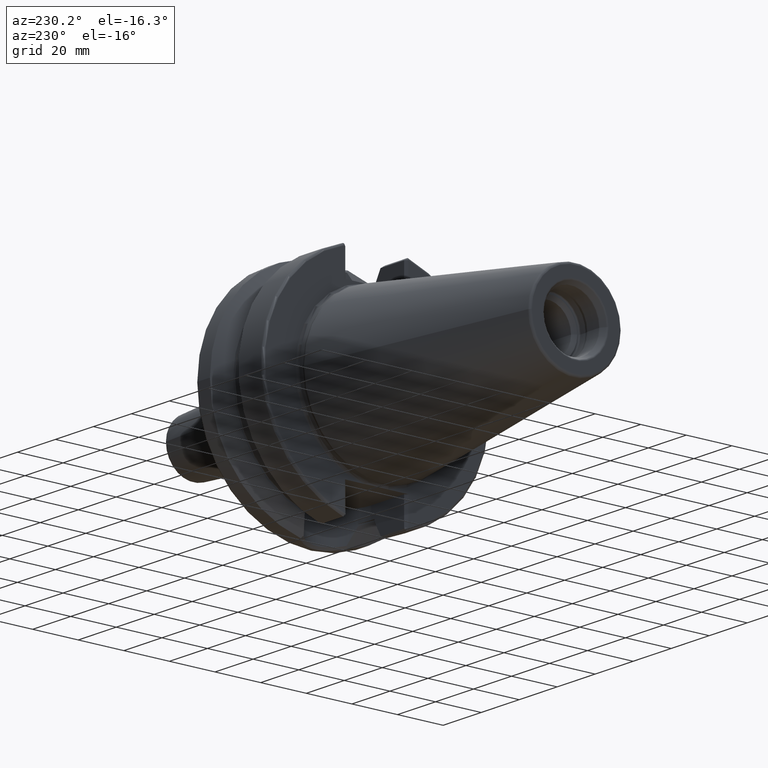
[diagram: clean part render]
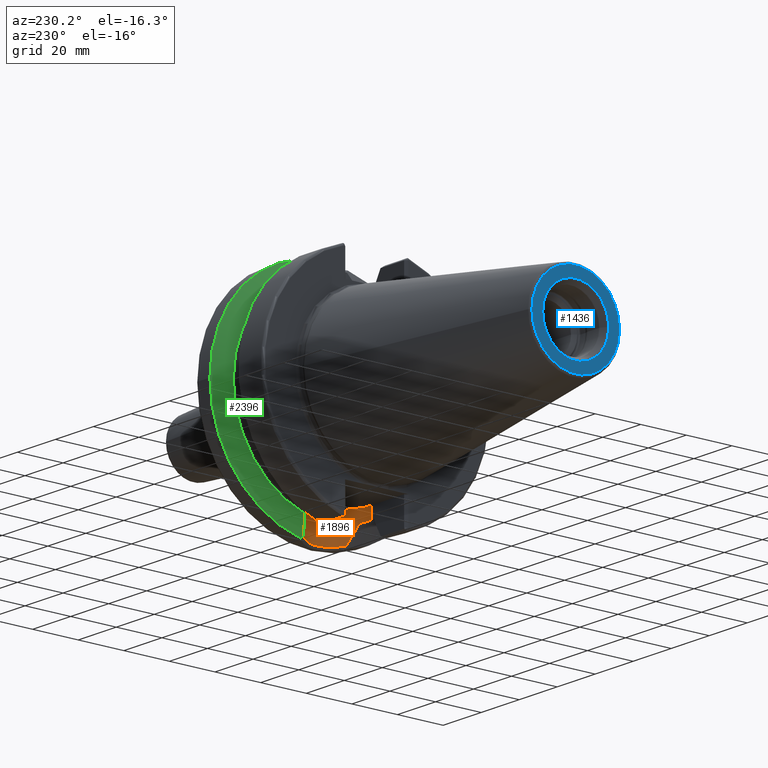
[diagram: same view with three faces highlighted in distinct colors, each labeled with its STEP entity id]
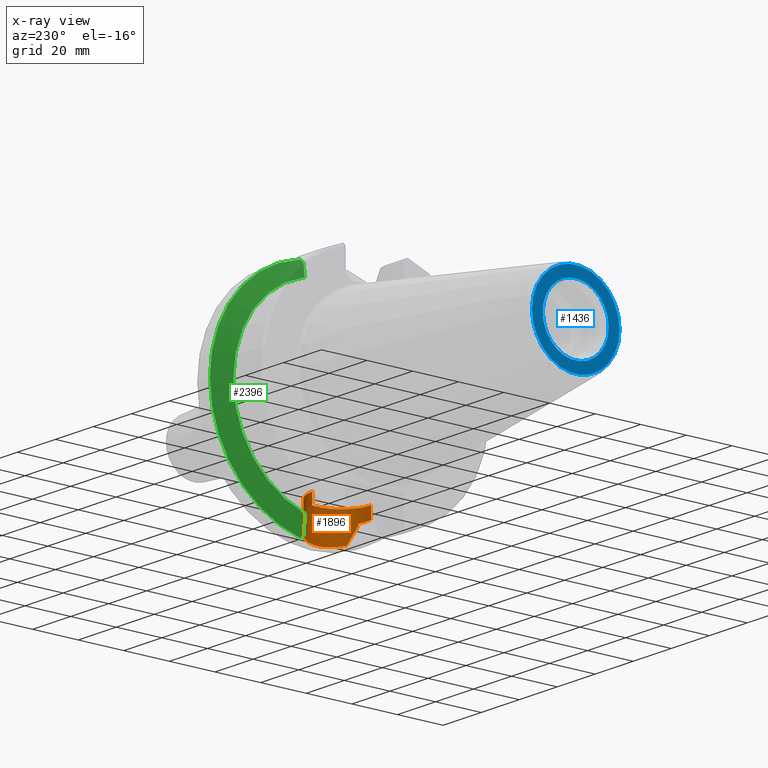
[diagram: x-ray of the same camera — body ghosted, the three highlighted faces saturated]
A machine part, auxiliary view with three faces highlighted in distinct colors.
The next image is the same camera in x-ray (body ghosted, the three faces saturated) — at least one of them is partly hidden behind the body in this view.
Their STEP definitions:

[orange] entity #1896 — the highlighted cylindrical surface (partial cylindrical patch) has radius 12.9025 mm, axis along (0, 0, 1).
#182=DIRECTION('',(0.E0,0.E0,-1.E0));
#183=VECTOR('',#182,5.162930007E0);
#184=CARTESIAN_POINT('',(2.13475E1,1.29025E1,-3.52E1));
#185=LINE('',#184,#183);
#354=CARTESIAN_POINT('',(2.13475E1,1.29025E1,-4.036293000700E1));
#355=CARTESIAN_POINT('',(2.193211835169E1,1.29025E1,-4.036293000700E1));
#356=CARTESIAN_POINT('',(2.309259987866E1,1.282394305612E1,-4.038817378856E1));
#357=CARTESIAN_POINT('',(2.482251458198E1,1.246756636177E1,-4.050035379602E1));
#358=CARTESIAN_POINT('',(2.593767013310E1,1.207328392825E1,-4.061943244291E1));
#359=CARTESIAN_POINT('',(2.64875E1,1.183447955129E1,-4.068888937720E1));
#368=CARTESIAN_POINT('',(2.64875E1,-1.183447955129E1,-4.068888937720E1));
#369=CARTESIAN_POINT('',(2.593767013313E1,-1.207328392824E1,-4.061943244291E1));
#370=CARTESIAN_POINT('',(2.482251458205E1,-1.246756636174E1,-4.050035379603E1));
#371=CARTESIAN_POINT('',(2.309259987910E1,-1.282394305606E1,-4.038817378858E1));
#372=CARTESIAN_POINT('',(2.193211835188E1,-1.29025E1,-4.036293000700E1));
#373=CARTESIAN_POINT('',(2.13475E1,-1.29025E1,-4.036293000700E1));
#387=DIRECTION('',(2.297871418294E-14,0.E0,1.E0));
#388=VECTOR('',#387,4.638266941984E-1);
#389=CARTESIAN_POINT('',(2.67375E1,-1.172273032403E1,-4.144514217760E1));
#390=LINE('',#389,#388);
#391=CARTESIAN_POINT('',(3.016210431090E1,-9.422168385896E0,-4.808834737145E1));
#392=CARTESIAN_POINT('',(2.984184465633E1,-9.721776927818E0,-4.746439031418E1));
#393=CARTESIAN_POINT('',(2.916110296190E1,-1.029742776940E1,-4.613939859477E1));
#394=CARTESIAN_POINT('',(2.801848253867E1,-1.107377940524E1,-4.392131510326E1));
#395=CARTESIAN_POINT('',(2.717774587881E1,-1.152030945269E1,-4.229484073698E1));
#396=CARTESIAN_POINT('',(2.67375E1,-1.172273032403E1,-4.144514217760E1));
#398=CARTESIAN_POINT('',(3.016210431090E1,-9.422168385896E0,-4.808834737145E1));
#399=CARTESIAN_POINT('',(3.038830254385E1,-9.210558729678E0,-4.812867332843E1));
#400=CARTESIAN_POINT('',(3.103434169493E1,-8.560889379491E0,-4.824821252851E1));
#401=CARTESIAN_POINT('',(3.197970905132E1,-7.382445453295E0,-4.844242280592E1));
#402=CARTESIAN_POINT('',(3.289145171727E1,-5.852654825445E0,-4.864857494510E1));
#403=CARTESIAN_POINT('',(3.357771384758E1,-4.232712259927E0,-4.881504266262E1));
#404=CARTESIAN_POINT('',(3.403491650909E1,-2.550947084760E0,-4.893129473496E1));
#405=CARTESIAN_POINT('',(3.426160790023E1,-8.338904639241E-1,
-4.899052850444E1));
#406=CARTESIAN_POINT('',(3.425755148343E1,8.947935434790E-1,-4.898945929220E1));
#407=CARTESIAN_POINT('',(3.402263555299E1,2.611429124511E0,-4.892811575875E1));
#408=CARTESIAN_POINT('',(3.355723766629E1,4.291494858894E0,-4.880993653671E1));
#409=CARTESIAN_POINT('',(3.286290406160E1,5.908692243282E0,-4.864185941849E1));
#410=CARTESIAN_POINT('',(3.194332576898E1,7.434643787718E0,-4.843455074383E1));
#411=CARTESIAN_POINT('',(3.100512167181E1,8.592346283708E0,-4.824257317048E1));
#412=CARTESIAN_POINT('',(3.037263944382E1,9.225225040673E0,-4.812587812569E1));
#413=CARTESIAN_POINT('',(3.016210355788E1,9.422169090361E0,-4.808834590435E1));
#415=CARTESIAN_POINT('',(2.67375E1,1.172273032403E1,-4.144514217760E1));
#416=CARTESIAN_POINT('',(2.717755273188E1,1.152039825981E1,-4.229446795287E1));
#417=CARTESIAN_POINT('',(2.801804260532E1,1.107404406164E1,-4.392046244152E1));
#418=CARTESIAN_POINT('',(2.916093120674E1,1.029757215552E1,-4.613906421021E1));
#419=CARTESIAN_POINT('',(2.984177307163E1,9.721843848552E0,-4.746425084782E1));
#420=CARTESIAN_POINT('',(3.016210355788E1,9.422169090361E0,-4.808834590435E1));
#422=DIRECTION('',(0.E0,1.148935709147E-14,1.E0));
#423=VECTOR('',#422,4.638266941984E-1);
#424=CARTESIAN_POINT('',(2.67375E1,1.172273032403E1,-4.144514217760E1));
#425=LINE('',#424,#423);
#426=CARTESIAN_POINT('',(2.64875E1,1.183447955129E1,-4.068888937720E1));
#427=CARTESIAN_POINT('',(2.651408131936E1,1.182293464297E1,-4.069224724672E1));
#428=CARTESIAN_POINT('',(2.656490253593E1,1.180065791496E1,-4.070695762482E1));
#429=CARTESIAN_POINT('',(2.663891469758E1,1.176763685688E1,-4.075541966358E1));
#430=CARTESIAN_POINT('',(2.669626231199E1,1.174163763665E1,-4.082489375053E1));
#431=CARTESIAN_POINT('',(2.672998645392E1,1.172618901674E1,-4.090260058967E1));
#432=CARTESIAN_POINT('',(2.67375E1,1.172273032403E1,-4.095473554554E1));
#433=CARTESIAN_POINT('',(2.67375E1,1.172273032403E1,-4.098131548340E1));
#435=DIRECTION('',(0.E0,0.E0,-1.E0));
#436=VECTOR('',#435,5.162930007E0);
#437=CARTESIAN_POINT('',(2.13475E1,-1.29025E1,-3.52E1));
#438=LINE('',#437,#436);
#439=CARTESIAN_POINT('',(2.67375E1,-1.172273032403E1,-4.098131548340E1));
#440=CARTESIAN_POINT('',(2.67375E1,-1.172273032403E1,-4.095473554554E1));
#441=CARTESIAN_POINT('',(2.672998645392E1,-1.172618901674E1,-4.090260058967E1));
#442=CARTESIAN_POINT('',(2.669626231199E1,-1.174163763665E1,-4.082489375053E1));
#443=CARTESIAN_POINT('',(2.663891469758E1,-1.176763685688E1,-4.075541966358E1));
#444=CARTESIAN_POINT('',(2.656490253593E1,-1.180065791496E1,-4.070695762482E1));
#445=CARTESIAN_POINT('',(2.651408131936E1,-1.182293464297E1,-4.069224724672E1));
#446=CARTESIAN_POINT('',(2.64875E1,-1.183447955129E1,-4.068888937720E1));
#753=CARTESIAN_POINT('',(2.13475E1,0.E0,-3.52E1));
#754=DIRECTION('',(0.E0,0.E0,1.E0));
#755=DIRECTION('',(0.E0,-1.E0,0.E0));
#756=AXIS2_PLACEMENT_3D('',#753,#754,#755);
#1193=CARTESIAN_POINT('',(2.67375E1,-1.172273032403E1,-4.098131548340E1));
#1195=VERTEX_POINT('',#1193);
#1196=CARTESIAN_POINT('',(2.64875E1,-1.183447955129E1,-4.068888937720E1));
#1198=VERTEX_POINT('',#1196);
#1201=CARTESIAN_POINT('',(2.64875E1,1.183447955129E1,-4.068888937720E1));
#1203=VERTEX_POINT('',#1201);
#1204=CARTESIAN_POINT('',(2.67375E1,1.172273032403E1,-4.098131548340E1));
#1206=VERTEX_POINT('',#1204);
#1209=CARTESIAN_POINT('',(2.67375E1,1.172273032403E1,-4.144514217760E1));
#1211=VERTEX_POINT('',#1209);
#1212=CARTESIAN_POINT('',(2.67375E1,-1.172273032403E1,-4.144514217760E1));
#1214=VERTEX_POINT('',#1212);
#1314=CARTESIAN_POINT('',(2.13475E1,-1.29025E1,-3.52E1));
#1315=CARTESIAN_POINT('',(2.13475E1,1.29025E1,-3.52E1));
#1316=VERTEX_POINT('',#1314);
#1317=VERTEX_POINT('',#1315);
#1330=CARTESIAN_POINT('',(2.13475E1,1.29025E1,-4.036293000700E1));
#1331=VERTEX_POINT('',#1330);
#1333=CARTESIAN_POINT('',(2.13475E1,-1.29025E1,-4.036293000700E1));
#1334=VERTEX_POINT('',#1333);
#1336=VERTEX_POINT('',#391);
#1337=VERTEX_POINT('',#420);
#1869=CARTESIAN_POINT('',(2.13475E1,0.E0,-3.52E1));
#1870=DIRECTION('',(0.E0,0.E0,1.E0));
#1871=DIRECTION('',(1.E0,0.E0,0.E0));
#1872=AXIS2_PLACEMENT_3D('',#1869,#1870,#1871);
#1873=CYLINDRICAL_SURFACE('',#1872,1.29025E1);
#1875=ORIENTED_EDGE('',*,*,#1874,.F.);
#1877=ORIENTED_EDGE('',*,*,#1876,.F.);
#1879=ORIENTED_EDGE('',*,*,#1878,.T.);
#1881=ORIENTED_EDGE('',*,*,#1880,.F.);
#1883=ORIENTED_EDGE('',*,*,#1882,.T.);
#1885=ORIENTED_EDGE('',*,*,#1884,.F.);
#1886=ORIENTED_EDGE('',*,*,#1840,.F.);
#1887=ORIENTED_EDGE('',*,*,#1641,.F.);
#1889=ORIENTED_EDGE('',*,*,#1888,.F.);
#1890=ORIENTED_EDGE('',*,*,#1792,.T.);
#1891=ORIENTED_EDGE('',*,*,#1856,.F.);
#1893=ORIENTED_EDGE('',*,*,#1892,.F.);
#1894=EDGE_LOOP('',(#1875,#1877,#1879,#1881,#1883,#1885,#1886,#1887,#1889,#1890,
#1891,#1893));
#1895=FACE_OUTER_BOUND('',#1894,.F.);
#1896=ADVANCED_FACE('',(#1895),#1873,.F.);
#360=B_SPLINE_CURVE_WITH_KNOTS('',3,(#354,#355,#356,#357,#358,#359),
.UNSPECIFIED.,.F.,.F.,(4,1,1,4),(0.E0,3.333333333333E-1,6.666666666667E-1,1.E0),
.UNSPECIFIED.);
#374=B_SPLINE_CURVE_WITH_KNOTS('',3,(#368,#369,#370,#371,#372,#373),
.UNSPECIFIED.,.F.,.F.,(4,1,1,4),(0.E0,3.333333333333E-1,6.666666666667E-1,1.E0),
.UNSPECIFIED.);
#397=B_SPLINE_CURVE_WITH_KNOTS('',3,(#391,#392,#393,#394,#395,#396),
.UNSPECIFIED.,.F.,.F.,(4,1,1,4),(0.E0,3.333333333333E-1,6.666666666667E-1,1.E0),
.UNSPECIFIED.);
#414=B_SPLINE_CURVE_WITH_KNOTS('',3,(#398,#399,#400,#401,#402,#403,#404,#405,
#406,#407,#408,#409,#410,#411,#412,#413),.UNSPECIFIED.,.F.,.F.,(4,1,1,1,1,1,1,1,
1,1,1,1,1,4),(0.E0,4.259851317235E-2,1.260313520961E-1,2.094641910198E-1,
2.928970299435E-1,3.763298688672E-1,4.597627077909E-1,5.431955467147E-1,
6.266283856384E-1,7.100612245621E-1,7.934940634858E-1,8.769269024095E-1,
9.603597413332E-1,1.E0),.UNSPECIFIED.);
#421=B_SPLINE_CURVE_WITH_KNOTS('',3,(#415,#416,#417,#418,#419,#420),
.UNSPECIFIED.,.F.,.F.,(4,1,1,4),(0.E0,3.333333333333E-1,6.666666666667E-1,1.E0),
.UNSPECIFIED.);
#434=B_SPLINE_CURVE_WITH_KNOTS('',3,(#426,#427,#428,#429,#430,#431,#432,#433),
.UNSPECIFIED.,.F.,.F.,(4,1,1,1,1,4),(0.E0,2.E-1,4.E-1,6.E-1,8.E-1,1.E0),
.UNSPECIFIED.);
#447=B_SPLINE_CURVE_WITH_KNOTS('',3,(#439,#440,#441,#442,#443,#444,#445,#446),
.UNSPECIFIED.,.F.,.F.,(4,1,1,1,1,4),(0.E0,2.E-1,4.E-1,6.E-1,8.E-1,1.E0),
.UNSPECIFIED.);
#757=CIRCLE('',#756,1.29025E1);
#1641=EDGE_CURVE('',#1317,#1331,#185,.T.);
#1792=EDGE_CURVE('',#1316,#1334,#438,.T.);
#1840=EDGE_CURVE('',#1331,#1203,#360,.T.);
#1856=EDGE_CURVE('',#1198,#1334,#374,.T.);
#1874=EDGE_CURVE('',#1214,#1195,#390,.T.);
#1876=EDGE_CURVE('',#1336,#1214,#397,.T.);
#1878=EDGE_CURVE('',#1336,#1337,#414,.T.);
#1880=EDGE_CURVE('',#1211,#1337,#421,.T.);
#1882=EDGE_CURVE('',#1211,#1206,#425,.T.);
#1884=EDGE_CURVE('',#1203,#1206,#434,.T.);
#1888=EDGE_CURVE('',#1316,#1317,#757,.T.);
#1892=EDGE_CURVE('',#1195,#1198,#447,.T.);

[blue] entity #1436 — the highlighted planar face has unit normal (1, 0, 0).
#2=CARTESIAN_POINT('',(-1.018E2,0.E0,0.E0));
#3=DIRECTION('',(-1.E0,0.E0,0.E0));
#4=DIRECTION('',(0.E0,1.E0,0.E0));
#5=AXIS2_PLACEMENT_3D('',#2,#3,#4);
#7=CARTESIAN_POINT('',(-1.018E2,0.E0,0.E0));
#8=DIRECTION('',(1.E0,0.E0,0.E0));
#9=DIRECTION('',(0.E0,1.E0,0.E0));
#10=AXIS2_PLACEMENT_3D('',#7,#8,#9);
#12=CARTESIAN_POINT('',(-1.018E2,0.E0,0.E0));
#13=DIRECTION('',(1.E0,0.E0,0.E0));
#14=DIRECTION('',(0.E0,1.E0,0.E0));
#15=AXIS2_PLACEMENT_3D('',#12,#13,#14);
#17=CARTESIAN_POINT('',(-1.018E2,0.E0,0.E0));
#18=DIRECTION('',(1.E0,0.E0,0.E0));
#19=DIRECTION('',(0.E0,-1.E0,0.E0));
#20=AXIS2_PLACEMENT_3D('',#17,#18,#19);
#1169=CARTESIAN_POINT('',(-1.018E2,1.921319540766E1,0.E0));
#1171=VERTEX_POINT('',#1169);
#1173=CARTESIAN_POINT('',(-1.018E2,-1.921319540766E1,0.E0));
#1175=VERTEX_POINT('',#1173);
#1298=CARTESIAN_POINT('',(-1.018E2,1.446188021535E1,0.E0));
#1299=CARTESIAN_POINT('',(-1.018E2,-1.446188021535E1,0.E0));
#1300=VERTEX_POINT('',#1298);
#1301=VERTEX_POINT('',#1299);
#1419=CARTESIAN_POINT('',(-1.018E2,0.E0,0.E0));
#1420=DIRECTION('',(1.E0,0.E0,0.E0));
#1421=DIRECTION('',(0.E0,-1.E0,0.E0));
#1422=AXIS2_PLACEMENT_3D('',#1419,#1420,#1421);
#1423=PLANE('',#1422);
#1425=ORIENTED_EDGE('',*,*,#1424,.F.);
#1427=ORIENTED_EDGE('',*,*,#1426,.T.);
#1428=EDGE_LOOP('',(#1425,#1427));
#1429=FACE_OUTER_BOUND('',#1428,.F.);
#1431=ORIENTED_EDGE('',*,*,#1430,.F.);
#1433=ORIENTED_EDGE('',*,*,#1432,.F.);
#1434=EDGE_LOOP('',(#1431,#1433));
#1435=FACE_BOUND('',#1434,.F.);
#1436=ADVANCED_FACE('',(#1429,#1435),#1423,.F.);
#6=CIRCLE('',#5,1.921319540766E1);
#11=CIRCLE('',#10,1.921319540766E1);
#16=CIRCLE('',#15,1.446188021535E1);
#21=CIRCLE('',#20,1.446188021535E1);
#1424=EDGE_CURVE('',#1171,#1175,#6,.T.);
#1426=EDGE_CURVE('',#1171,#1175,#11,.T.);
#1430=EDGE_CURVE('',#1300,#1301,#16,.T.);
#1432=EDGE_CURVE('',#1301,#1300,#21,.T.);

[green] entity #2396 — the highlighted conical surface has half-angle 60 deg.
#263=CARTESIAN_POINT('',(3.073066823617E1,0.E0,0.E0));
#264=DIRECTION('',(1.E0,0.E0,0.E0));
#265=DIRECTION('',(0.E0,2.049238320147E-1,-9.787779232657E-1));
#266=AXIS2_PLACEMENT_3D('',#263,#264,#265);
#415=CARTESIAN_POINT('',(2.67375E1,1.172273032403E1,-4.144514217760E1));
#416=CARTESIAN_POINT('',(2.717755273188E1,1.152039825981E1,-4.229446795287E1));
#417=CARTESIAN_POINT('',(2.801804260532E1,1.107404406164E1,-4.392046244152E1));
#418=CARTESIAN_POINT('',(2.916093120674E1,1.029757215552E1,-4.613906421021E1));
#419=CARTESIAN_POINT('',(2.984177307163E1,9.721843848552E0,-4.746425084782E1));
#420=CARTESIAN_POINT('',(3.016210355788E1,9.422169090361E0,-4.808834590435E1));
#485=CARTESIAN_POINT('',(3.006745596523E1,9.509830398822E0,4.790396451831E1));
#486=CARTESIAN_POINT('',(2.975376574683E1,9.797465906135E0,4.729293338983E1));
#487=CARTESIAN_POINT('',(2.908879078217E1,1.035010846105E1,4.599889189585E1));
#488=CARTESIAN_POINT('',(2.797778721927E1,1.109635283633E1,4.384252820130E1));
#489=CARTESIAN_POINT('',(2.716331106798E1,1.152694644153E1,4.226698076473E1));
#490=CARTESIAN_POINT('',(2.67375E1,1.172273032403E1,4.144514217760E1));
#758=CARTESIAN_POINT('',(2.67375E1,0.E0,0.E0));
#759=DIRECTION('',(-1.E0,0.E0,0.E0));
#760=DIRECTION('',(0.E0,2.721714149834E-1,9.622487832499E-1));
#761=AXIS2_PLACEMENT_3D('',#758,#759,#760);
#775=CARTESIAN_POINT('',(3.016210355788E1,9.422169090361E0,-4.808834590435E1));
#776=CARTESIAN_POINT('',(3.022394586618E1,9.512142137117E0,-4.817986780383E1));
#777=CARTESIAN_POINT('',(3.034851502566E1,9.692953240337E0,-4.836399151813E1));
#778=CARTESIAN_POINT('',(3.053803725886E1,9.966778365933E0,-4.864343348084E1));
#779=CARTESIAN_POINT('',(3.066616050581E1,1.015105667945E1,-4.883189001679E1));
#780=CARTESIAN_POINT('',(3.073066823617E1,1.024363005283E1,-4.892666143925E1));
#782=CARTESIAN_POINT('',(3.073066823617E1,0.E0,0.E0));
#783=DIRECTION('',(1.E0,0.E0,0.E0));
#784=DIRECTION('',(0.E0,1.E0,0.E0));
#785=AXIS2_PLACEMENT_3D('',#782,#783,#784);
#948=CARTESIAN_POINT('',(3.073066823617E1,1.046765017837E1,4.887922315251E1));
#949=CARTESIAN_POINT('',(3.065516473864E1,1.035946447073E1,4.876865040800E1));
#950=CARTESIAN_POINT('',(3.050537106240E1,1.014427039488E1,4.854898287946E1));
#951=CARTESIAN_POINT('',(3.028429900742E1,9.824990065200E0,4.822389090934E1));
#952=CARTESIAN_POINT('',(3.013933640756E1,9.614493300520E0,4.801011711517E1));
#953=CARTESIAN_POINT('',(3.006745596523E1,9.509830398822E0,4.790396451831E1));
#1208=CARTESIAN_POINT('',(2.67375E1,1.172273032403E1,4.144514217760E1));
#1209=CARTESIAN_POINT('',(2.67375E1,1.172273032403E1,-4.144514217760E1));
#1210=VERTEX_POINT('',#1208);
#1211=VERTEX_POINT('',#1209);
#1224=CARTESIAN_POINT('',(3.073066823617E1,4.99875E1,0.E0));
#1225=CARTESIAN_POINT('',(3.073066823617E1,1.046765017837E1,4.887922315251E1));
#1226=VERTEX_POINT('',#1224);
#1227=VERTEX_POINT('',#1225);
#1238=CARTESIAN_POINT('',(3.073066823617E1,1.024363005283E1,-4.892666143925E1));
#1239=VERTEX_POINT('',#1238);
#1329=VERTEX_POINT('',#485);
#1337=VERTEX_POINT('',#420);
#2379=CARTESIAN_POINT('',(2.873408411809E1,0.E0,0.E0));
#2380=DIRECTION('',(1.E0,0.E0,0.E0));
#2381=DIRECTION('',(0.E0,-1.E0,0.E0));
#2382=AXIS2_PLACEMENT_3D('',#2379,#2380,#2381);
#2383=CONICAL_SURFACE('',#2382,4.652931486589E1,6.E1);
#2384=ORIENTED_EDGE('',*,*,#1905,.T.);
#2385=ORIENTED_EDGE('',*,*,#1880,.T.);
#2387=ORIENTED_EDGE('',*,*,#2386,.T.);
#2388=ORIENTED_EDGE('',*,*,#1761,.T.);
#2390=ORIENTED_EDGE('',*,*,#2389,.T.);
#2392=ORIENTED_EDGE('',*,*,#2391,.T.);
#2393=ORIENTED_EDGE('',*,*,#1968,.T.);
#2394=EDGE_LOOP('',(#2384,#2385,#2387,#2388,#2390,#2392,#2393));
#2395=FACE_OUTER_BOUND('',#2394,.F.);
#2396=ADVANCED_FACE('',(#2395),#2383,.T.);
#267=CIRCLE('',#266,4.99875E1);
#421=B_SPLINE_CURVE_WITH_KNOTS('',3,(#415,#416,#417,#418,#419,#420),
.UNSPECIFIED.,.F.,.F.,(4,1,1,4),(0.E0,3.333333333333E-1,6.666666666667E-1,1.E0),
.UNSPECIFIED.);
#491=B_SPLINE_CURVE_WITH_KNOTS('',3,(#485,#486,#487,#488,#489,#490),
.UNSPECIFIED.,.F.,.F.,(4,1,1,4),(0.E0,3.333333333333E-1,6.666666666667E-1,1.E0),
.UNSPECIFIED.);
#762=CIRCLE('',#761,4.307112973177E1);
#781=B_SPLINE_CURVE_WITH_KNOTS('',3,(#775,#776,#777,#778,#779,#780),
.UNSPECIFIED.,.F.,.F.,(4,1,1,4),(0.E0,3.333333333333E-1,6.666666666667E-1,1.E0),
.UNSPECIFIED.);
#786=CIRCLE('',#785,4.99875E1);
#954=B_SPLINE_CURVE_WITH_KNOTS('',3,(#948,#949,#950,#951,#952,#953),
.UNSPECIFIED.,.F.,.F.,(4,1,1,4),(0.E0,3.333333333333E-1,6.666666666667E-1,1.E0),
.UNSPECIFIED.);
#1761=EDGE_CURVE('',#1239,#1226,#267,.T.);
#1880=EDGE_CURVE('',#1211,#1337,#421,.T.);
#1905=EDGE_CURVE('',#1210,#1211,#762,.T.);
#1968=EDGE_CURVE('',#1329,#1210,#491,.T.);
#2386=EDGE_CURVE('',#1337,#1239,#781,.T.);
#2389=EDGE_CURVE('',#1226,#1227,#786,.T.);
#2391=EDGE_CURVE('',#1227,#1329,#954,.T.);